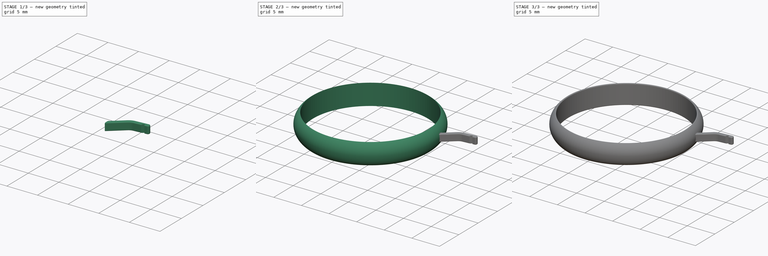
[diagram: build sequence overview — one tinted view per stage of 3, left to right]
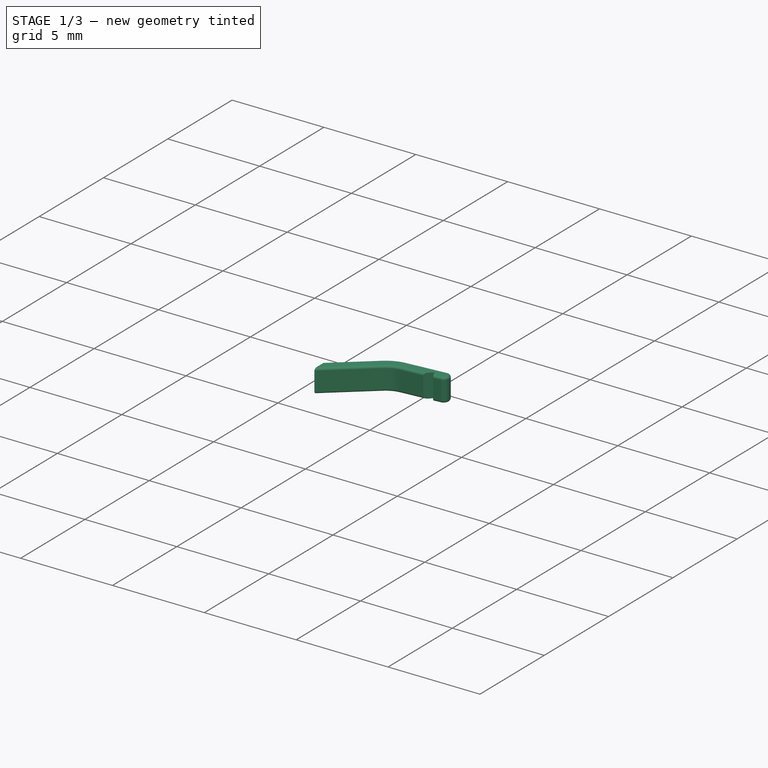
[diagram: stage 1 of 3 — iso view after this stage's code; geometry added in this stage tinted green]
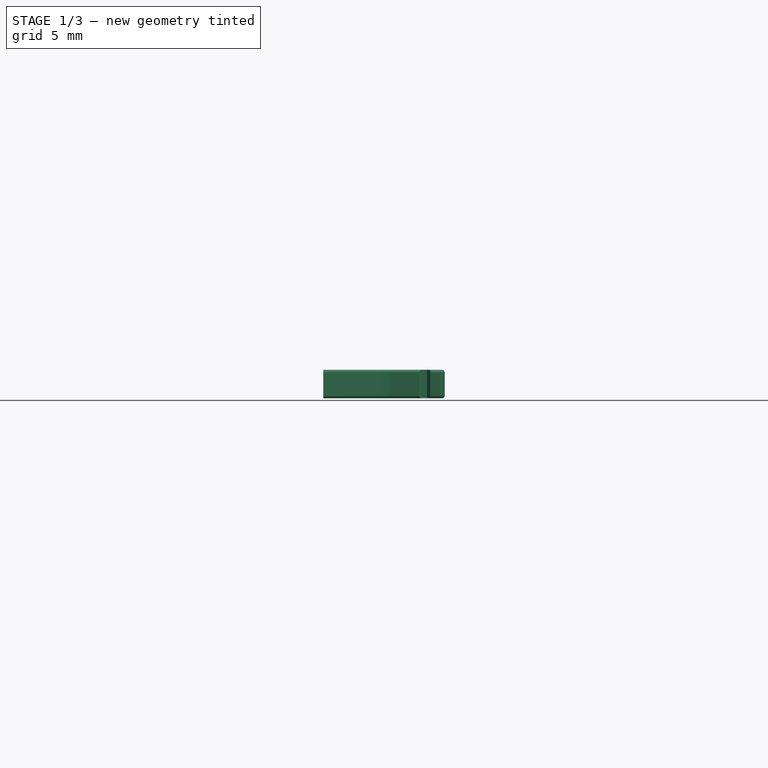
[diagram: stage 1 of 3 — front view after this stage's code; geometry added in this stage tinted green]
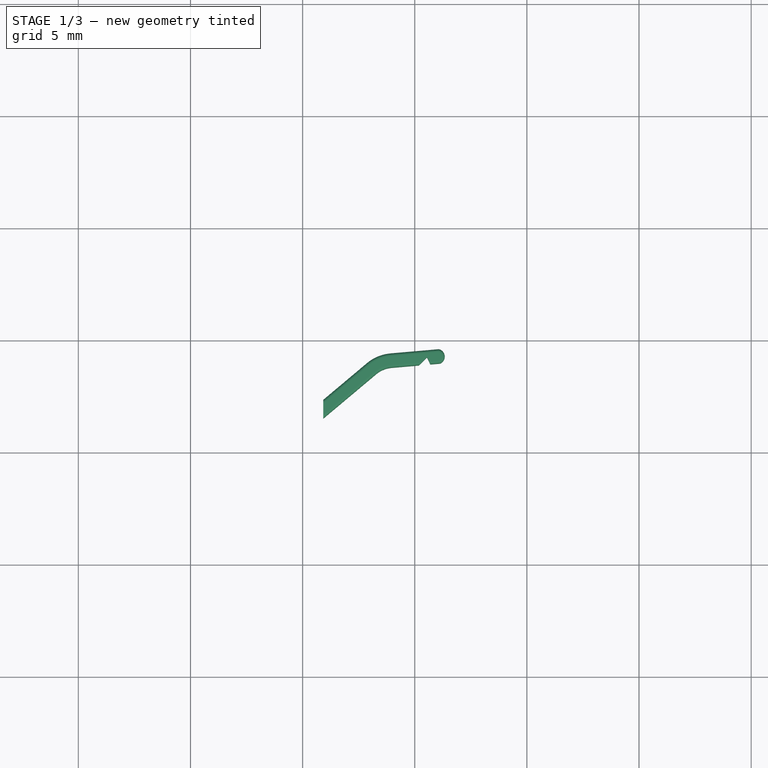
[diagram: stage 1 of 3 — top view after this stage's code; geometry added in this stage tinted green]
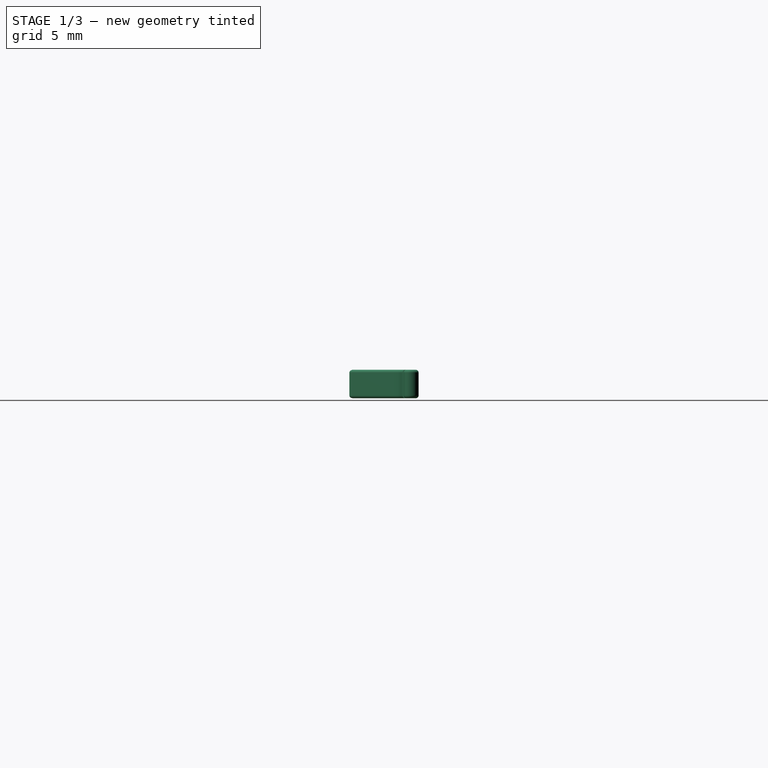
[diagram: stage 1 of 3 — right view after this stage's code; geometry added in this stage tinted green]
FCSTD DOCUMENT  (FreeCAD 0.16R)
Label: ring
License: All rights reserved
LicenseURL: http://en.wikipedia.org/wiki/All_rights_reserved
objects: Sketcher::SketchObject×2, PartDesign::Fillet×2, Part::Revolution×1, PartDesign::Pad×1, Part::MultiFuse×1
note: 8 computed .brp shape members not serialized (recipe doc carries the construction recipe); baked Part::Feature solids carry a one-line shape summary decoded from their .brp

FEATURE [Sketcher::SketchObject] Sketch001  label="Prong 1"
  sketch-geometry (16):
    g0: LineSegment StartX=10.922 StartY=2.35293 StartZ=0 EndX=12.8678 EndY=3.98561 EndZ=0
    g1: LineSegment StartX=13.9175 StartY=4.42045 StartZ=0 EndX=16.0683 EndY=4.60862 EndZ=0
    g2: LineSegment StartX=13.2759 StartY=3.49918 StartZ=0 EndX=10.922 EndY=1.524 EndZ=0
    g3: LineSegment StartX=10.922 StartY=1.524 StartZ=0 EndX=10.922 EndY=2.35293 EndZ=0
    g4: ArcOfCircle CenterX=16.0056 CenterY=4.28442 CenterZ=0 NormalX=0 NormalY=0 NormalZ=1 Radius=0.3302 StartAngle=5.0779 EndAngle=7.663
    g5: LineSegment StartX=13.9729 StartY=3.78787 StartZ=0 EndX=15.1874 EndY=3.89413 EndZ=0
    g6: LineSegment StartX=15.1874 StartY=3.89413 StartZ=0 EndX=15.5467 EndY=4.25334 EndZ=0
    g7: LineSegment StartX=15.5467 StartY=4.25334 StartZ=0 EndX=15.6935 EndY=3.9384 EndZ=0
    g8: LineSegment StartX=15.6935 StartY=3.9384 StartZ=0 EndX=16.1237 EndY=3.97604 EndZ=0
    g9: ArcOfCircle CenterX=14.0822 CenterY=2.53828 CenterZ=0 NormalX=0 NormalY=0 NormalZ=1 Radius=1.88936 StartAngle=1.65806 EndAngle=2.26893
    g10: ArcOfCircle CenterX=14.0822 CenterY=2.53828 CenterZ=0 NormalX=0 NormalY=0 NormalZ=1 Radius=1.25436 StartAngle=1.65806 EndAngle=2.26893
    g11: LineSegment [constr] StartX=15.6935 StartY=3.9384 StartZ=0 EndX=15.1874 EndY=3.89413 EndZ=0
    g12: LineSegment [constr] StartX=10.922 StartY=2.35293 StartZ=0 EndX=11.3302 EndY=1.8665 EndZ=0
    g13: LineSegment [constr] StartX=12.8678 StartY=3.98561 StartZ=0 EndX=13.2759 EndY=3.49918 EndZ=0
    g14: LineSegment [constr] StartX=13.9175 StartY=4.42045 StartZ=0 EndX=13.9729 EndY=3.78787 EndZ=0
    g15: LineSegment [constr] StartX=16.0683 StartY=4.60862 StartZ=0 EndX=16.1237 EndY=3.97604 EndZ=0
  constraints (48):
    c: Coincident(g2,g3)
    c: Coincident(g3,g0)
    c: Coincident(g4,g1)
    c: Coincident(g5,g6)
    c: Coincident(g6,g7)
    c: Coincident(g7,g8)
    c: Coincident(g8,g4)
    c: Tangent(g0,g9) = 1.5708
    c: Tangent(g1,g9) = 1.5708
    c: Tangent(g2,g10) = -1.5708
    c: Tangent(g5,g10) = 1.5708
    c: Vertical(g3)
    c: DistanceX(g2) = 10.922
    c: DistanceY(g2) = 1.524
    c: Coincident(g11,g7)
    c: Coincident(g11,g5)
    c: Coincident(g12,g0)
    c: PointOnObject(g12,g2)
    c: Perpendicular(g0,g12)
    c: Parallel(g0,g2)
    c: Coincident(g9,g10)
    c: Coincident(g13,g0)
    c: Coincident(g13,g2)
    c: Coincident(g14,g1)
    c: Coincident(g14,g5)
    c: Coincident(g15,g1)
    c: Coincident(g15,g4)
    c: Equal(g12,g13)
    c: Perpendicular(g1,g14)
    c: Equal(g15,g14)
    c: Equal(g12,g13)
    c: Equal(g13,g14)
    c: Equal(g14,g15)
    c: Angle(g6,g5) = 2.44346
    c: Angle(g8,g7) = 1.91986
    c: Distance(g11) = 0.508
    c: Distance(g15) = 0.635
    c: Angle(g2,g3) = 0.872665
    c: Radius(g4) = 0.3302
    c: Distance(g1) = 2.159
    c: Parallel(g15,g14)
    c: Equal(g14,g15)
    c: Distance(g0) = 2.54
    c: Parallel(g1,g5)
    c: Angle(g2,g5) = 2.53073
    c: Distance(g5) = 1.2192
    c: Parallel(g13,g12)
    c: Parallel(g11,g5)
FEATURE [PartDesign::Pad] Pad  label="Prong 1 Pad"
  Length = 1.27
  Length2 = 100
  Midplane = true
  Sketch = -> Sketch001
  Type = 0
FEATURE [PartDesign::Fillet] Fillet  label="Prong 1 Fillet"
  Base = -> Pad [Edge13,Edge16,Edge19,Edge22,Edge25,Edge33,Edge4,Edge7,Edge6,Edge3,Edge32,Edge21,Edge24,Edge18,Edge15,Edge12]
  Radius = 0.127
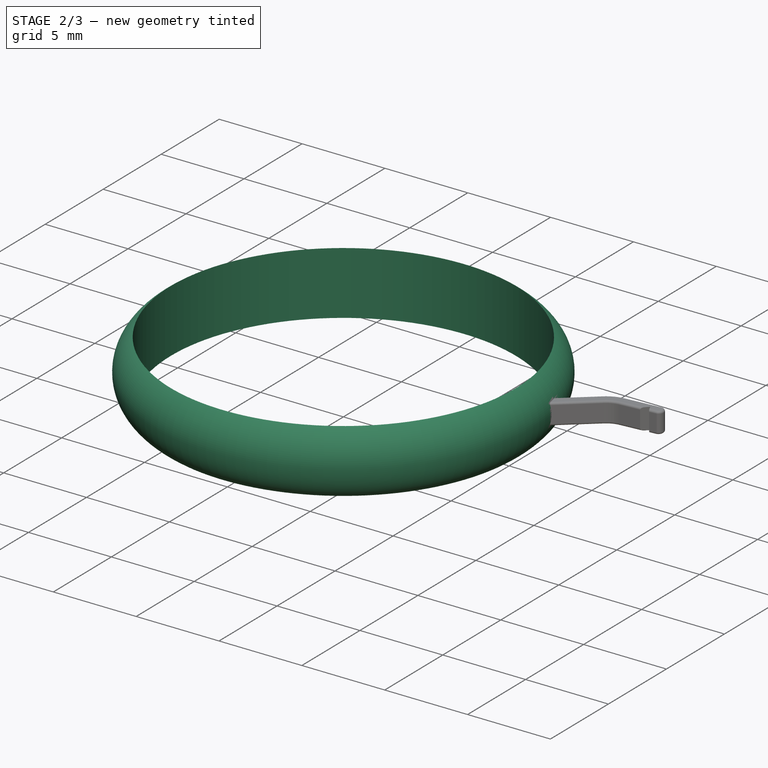
[diagram: stage 2 of 3 — iso view after this stage's code; geometry added in this stage tinted green]
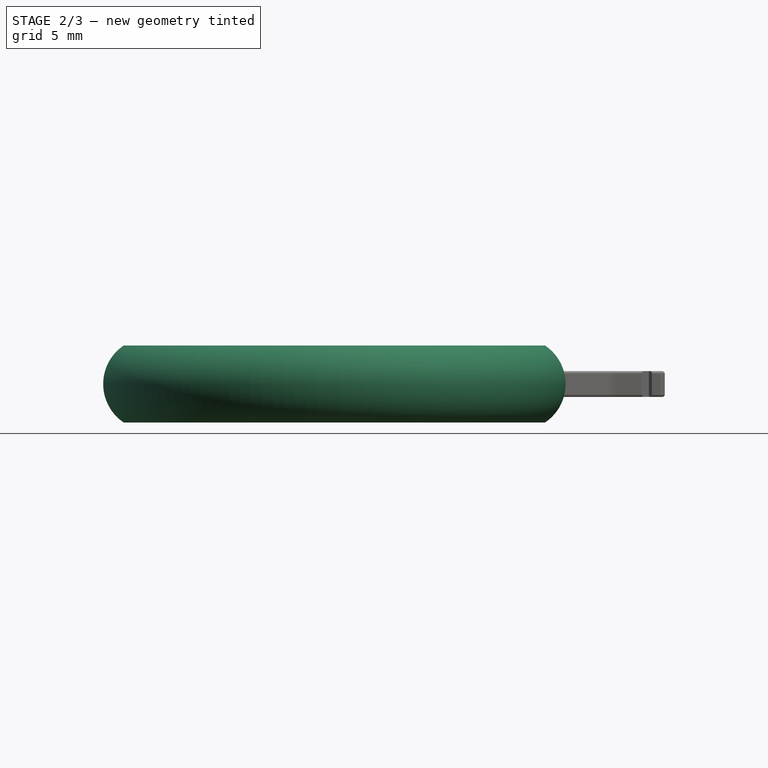
[diagram: stage 2 of 3 — front view after this stage's code; geometry added in this stage tinted green]
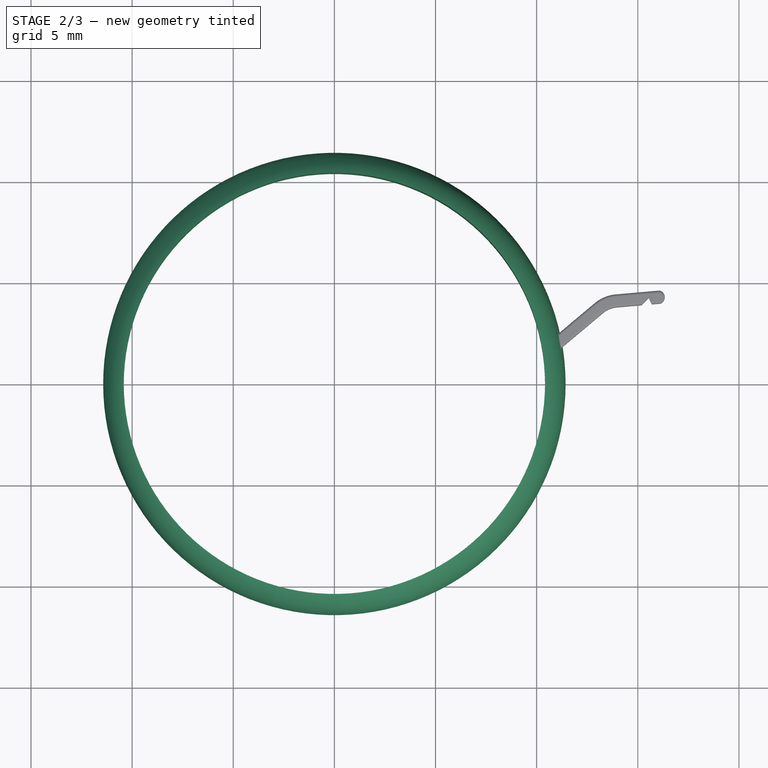
[diagram: stage 2 of 3 — top view after this stage's code; geometry added in this stage tinted green]
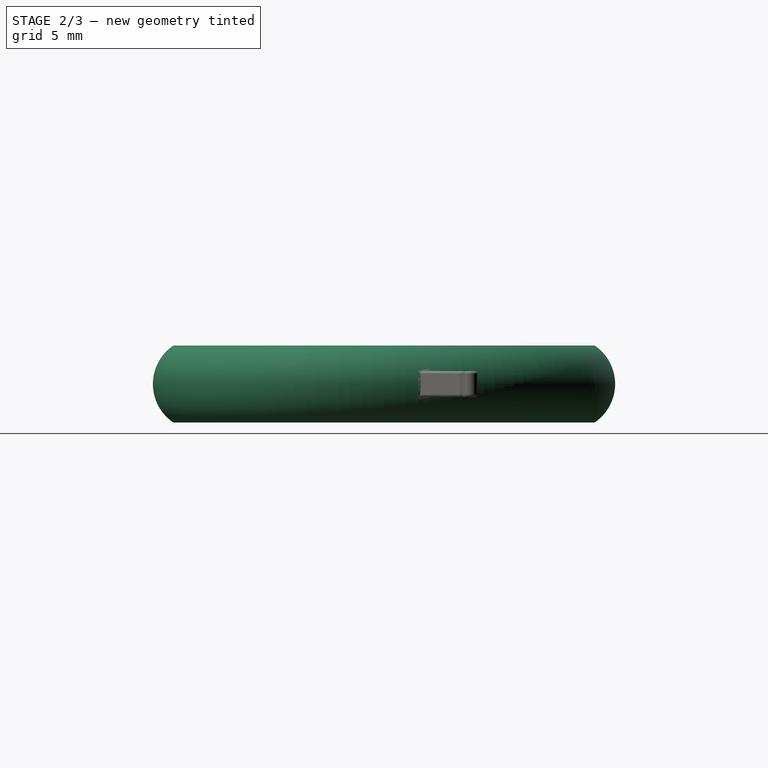
[diagram: stage 2 of 3 — right view after this stage's code; geometry added in this stage tinted green]
FEATURE [Sketcher::SketchObject] Sketch  label="Body"
  Placement = pos=(0,0,0) rot=(1,0,0;1.5708rad)
  sketch-geometry (4):
    g0: LineSegment StartX=10.414 StartY=1.905 StartZ=0 EndX=10.414 EndY=-1.905 EndZ=0
    g1: GeomPoint [constr] X=11.43 Y=0 Z=0
    g2: ArcOfCircle CenterX=9.13606 CenterY=0 CenterZ=0 NormalX=0 NormalY=0 NormalZ=1 Radius=2.29394 StartAngle=5.30327 EndAngle=7.2631
    g3: GeomPoint [constr] X=10.414 Y=0 Z=0
  constraints (11):
    c: PointOnObject(g1,g-1)
    c: Coincident(g2,g0)
    c: Coincident(g2,g0)
    c: PointOnObject(g1,g2)
    c: PointOnObject(g2,g-1)
    c: Symmetric(g0,g0,g-1)
    c: PointOnObject(g3,g0)
    c: PointOnObject(g3,g-1)
    c: DistanceX(g-1,g3) = 10.414
    c: DistanceX(g3,g1) = 1.016
    c: DistanceY(g0,g0) = 3.81
FEATURE [Part::Revolution] Revolve  label="Body Revolve"
  Angle = 360
  Axis = (0,0,1)
  Base = (0,0,0)
  Solid = true
  Source = -> Sketch
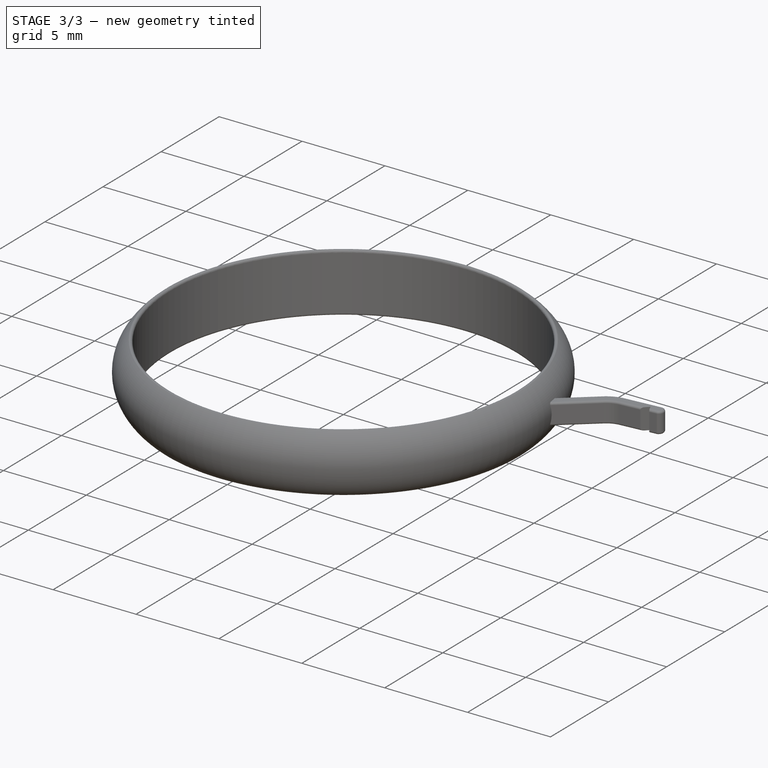
[diagram: stage 3 of 3 — iso view after this stage's code; geometry added in this stage tinted green]
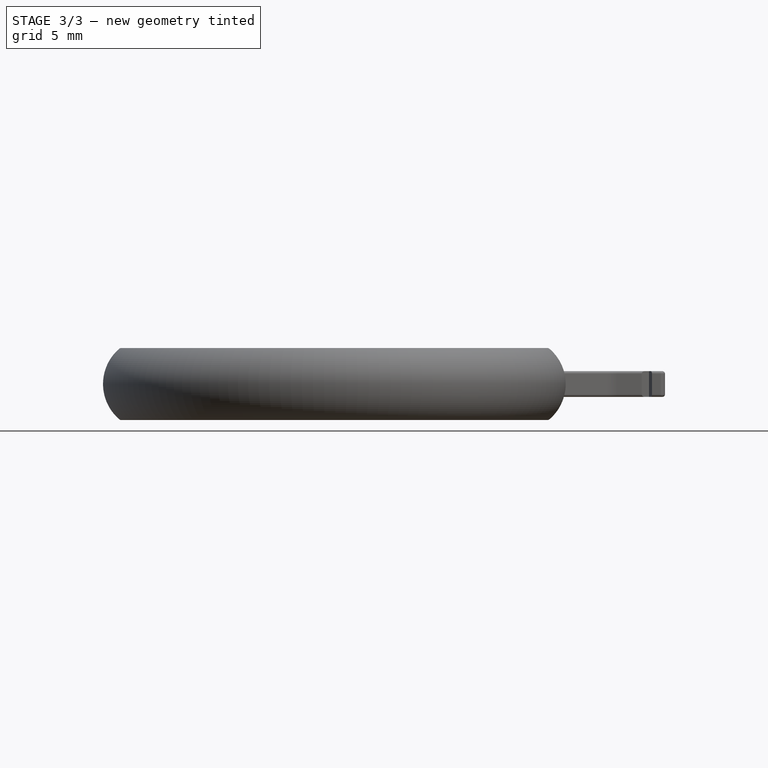
[diagram: stage 3 of 3 — front view after this stage's code; geometry added in this stage tinted green]
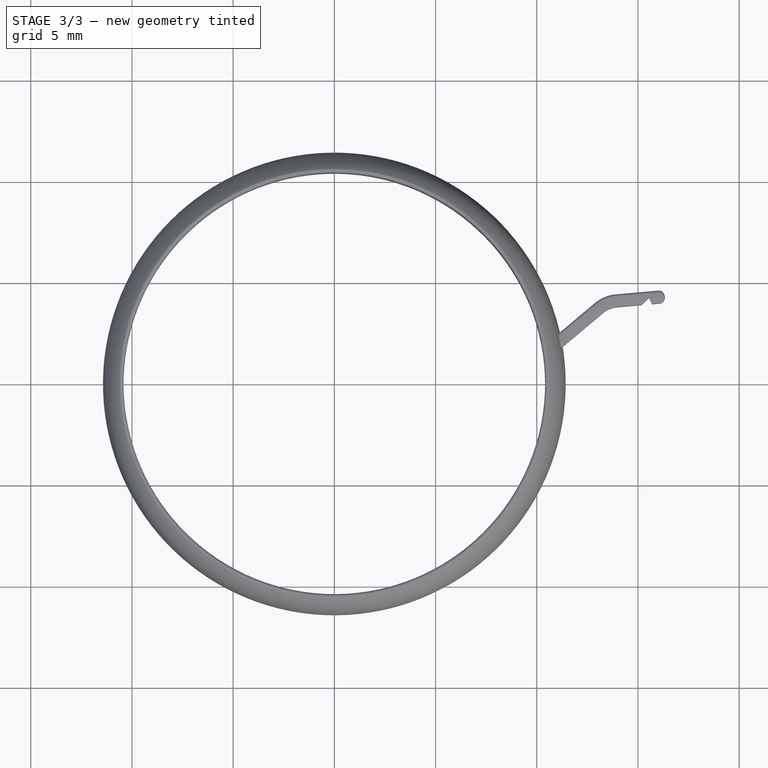
[diagram: stage 3 of 3 — top view after this stage's code; geometry added in this stage tinted green]
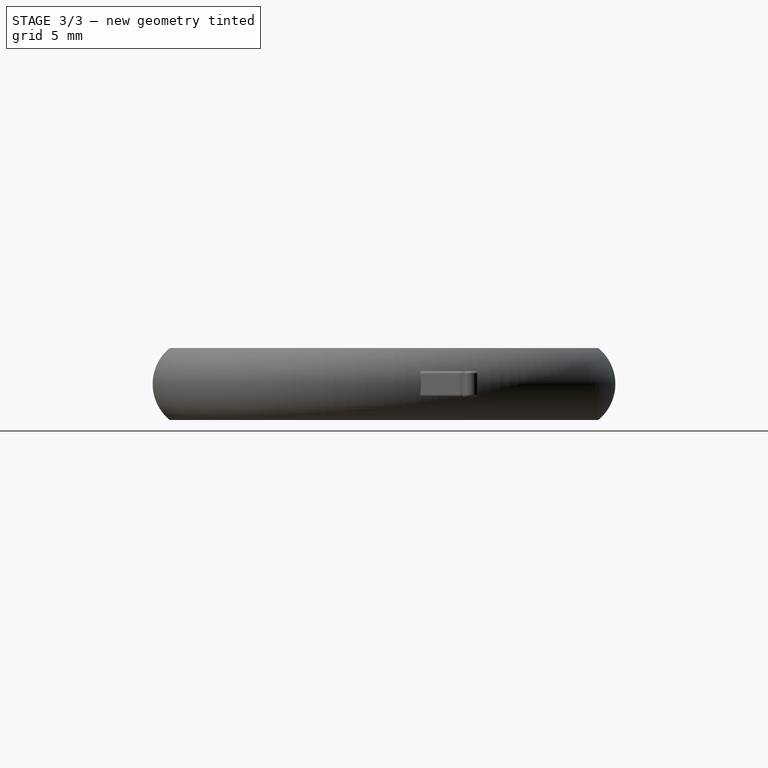
[diagram: stage 3 of 3 — right view after this stage's code; geometry added in this stage tinted green]
FEATURE [PartDesign::Fillet] Fillet002  label="Body Fillet"
  Base = -> Revolve [Edge2,Edge1]
  Radius = 0.127
FEATURE [Part::MultiFuse] Fusion  label="Master Fusion"
  Shapes = -> [Fillet002,Fillet]
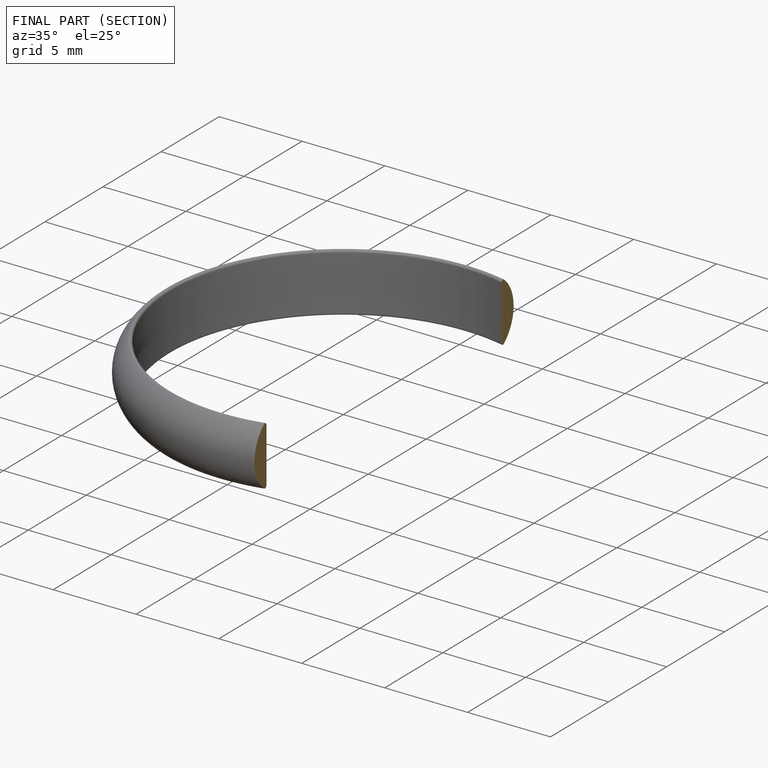
[diagram: finished part — half-section view (interior)]
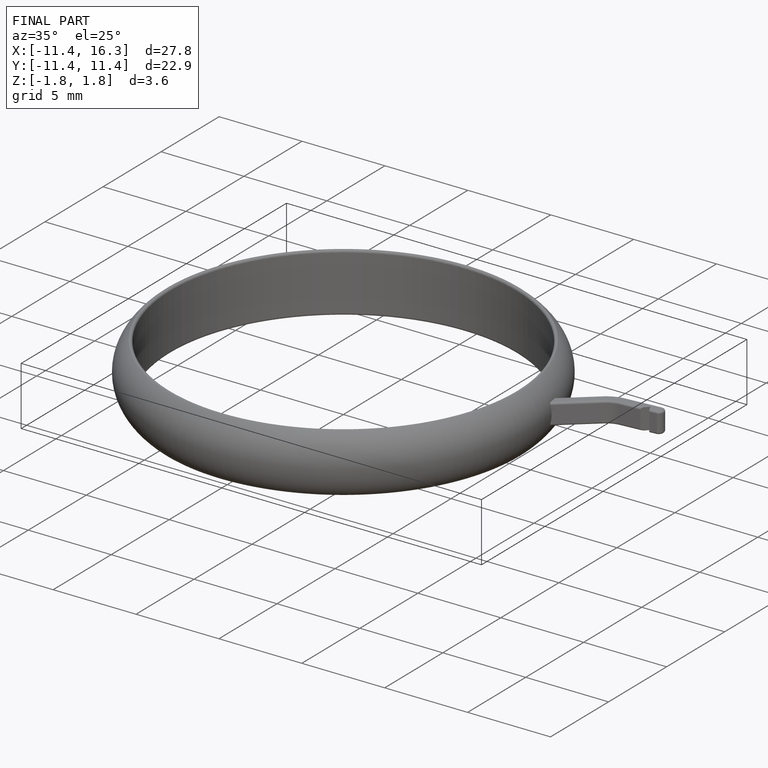
[diagram: finished part — iso view with bounding-box wireframe]
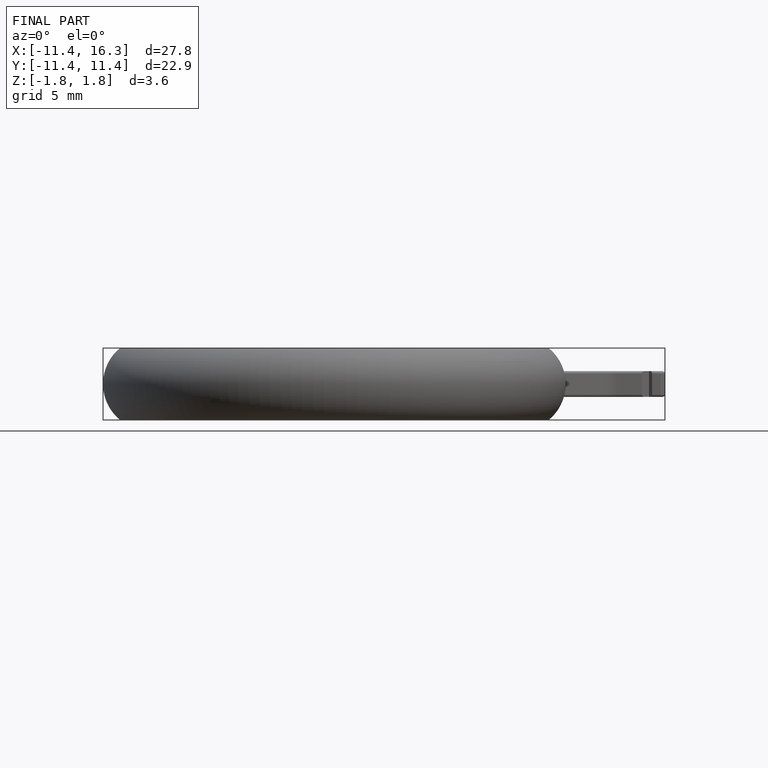
[diagram: finished part — front view with bounding-box wireframe]
